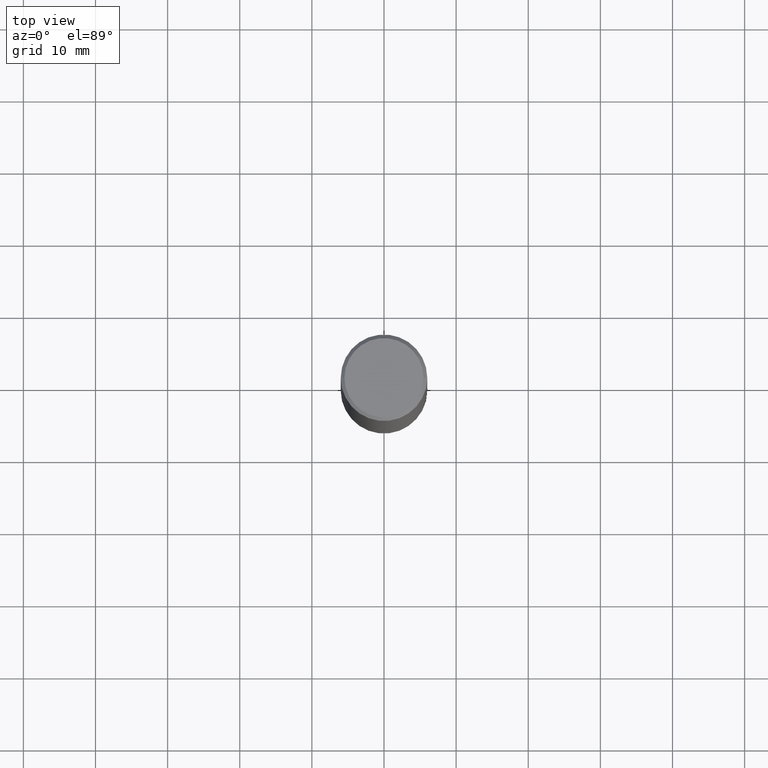
[diagram: clean part render]
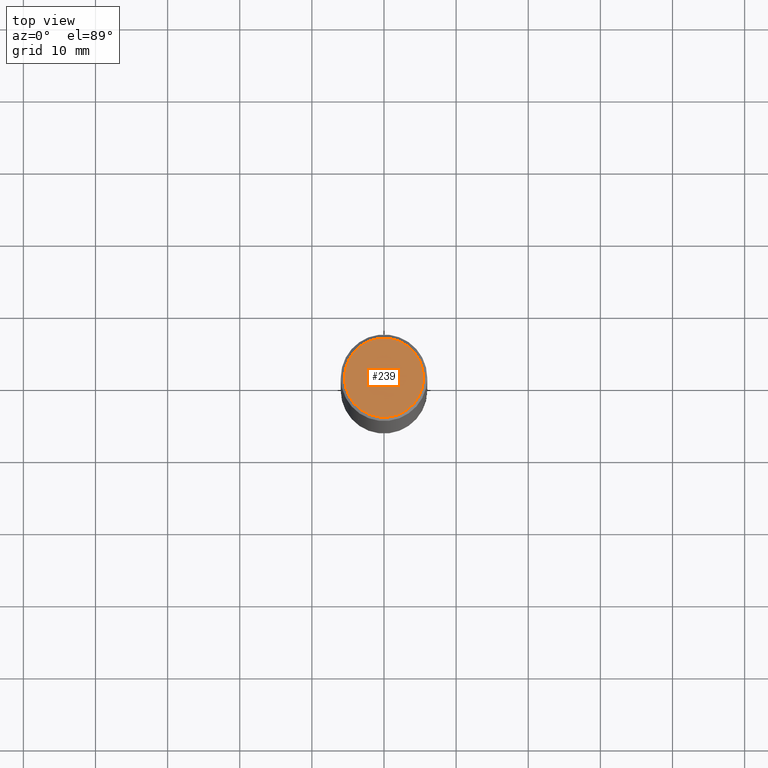
[diagram: same view with one face highlighted and labeled with its STEP entity id]
A machine part, top view. The second image highlights one B-rep face of the part: STEP entity #239.
In plain terms, the highlighted planar face has unit normal (0, -0, -1).
Its self-contained STEP definition (entity closure, byte-faithful):
#10 = CARTESIAN_POINT ( 'NONE',  ( -0.2161999999999997257, 1.544631344304200197E-15, 4.268512490089730842E-18 ) ) ;
#21 = CARTESIAN_POINT ( 'NONE',  ( 0.2161999999999997257, -1.586759460484350213E-15, 4.268512490111238857E-18 ) ) ;
#22 = AXIS2_PLACEMENT_3D ( 'NONE', #335, #156, #154 ) ;
#44 = DIRECTION ( 'NONE',  ( 1.000000000000000000, -6.982962677686267499E-15, 4.876217060660161841E-29 ) ) ;
#72 = PLANE ( 'NONE',  #22 ) ;
#76 = DIRECTION ( 'NONE',  ( 1.000000000000000000, -6.982962677686267499E-15, 4.876217060660161841E-29 ) ) ;
#87 = AXIS2_PLACEMENT_3D ( 'NONE', #125, #162, #76 ) ;
#96 = DIRECTION ( 'NONE',  ( -2.445468806185136597E-29, 3.491481338843145583E-15, 1.000000000000000000 ) ) ;
#107 = VERTEX_POINT ( 'NONE', #10 ) ;
#125 = CARTESIAN_POINT ( 'NONE',  ( -1.043851414335219820E-46, 1.490343170380447200E-32, 4.268512490100411279E-18 ) ) ;
#151 = FACE_OUTER_BOUND ( 'NONE', #235, .T. ) ;
#154 = DIRECTION ( 'NONE',  ( -1.000000000000000000, 6.982962677686265922E-15, -4.876176775795935793E-29 ) ) ;
#156 = DIRECTION ( 'NONE',  ( 2.438088387897960049E-29, -3.491481338843145188E-15, -1.000000000000000000 ) ) ;
#162 = DIRECTION ( 'NONE',  ( -2.445468806185136597E-29, 3.491481338843145583E-15, 1.000000000000000000 ) ) ;
#172 = AXIS2_PLACEMENT_3D ( 'NONE', #337, #96, #44 ) ;
#189 = EDGE_CURVE ( 'NONE', #302, #107, #350, .T. ) ;
#235 = EDGE_LOOP ( 'NONE', ( #336, #293 ) ) ;
#239 = ADVANCED_FACE ( 'NONE', ( #151 ), #72, .F. ) ;
#271 = CIRCLE ( 'NONE', #87, 0.2161999999999997257 ) ;
#293 = ORIENTED_EDGE ( 'NONE', *, *, #189, .T. ) ;
#302 = VERTEX_POINT ( 'NONE', #21 ) ;
#335 = CARTESIAN_POINT ( 'NONE',  ( 1.509716530915768746E-15, 0.2161999999999997257, -7.527240092128370190E-16 ) ) ;
#336 = ORIENTED_EDGE ( 'NONE', *, *, #342, .T. ) ;
#337 = CARTESIAN_POINT ( 'NONE',  ( -1.043851414335219820E-46, 1.490343170380447200E-32, 4.268512490100411279E-18 ) ) ;
#342 = EDGE_CURVE ( 'NONE', #107, #302, #271, .T. ) ;
#350 = CIRCLE ( 'NONE', #172, 0.2161999999999997257 ) ;